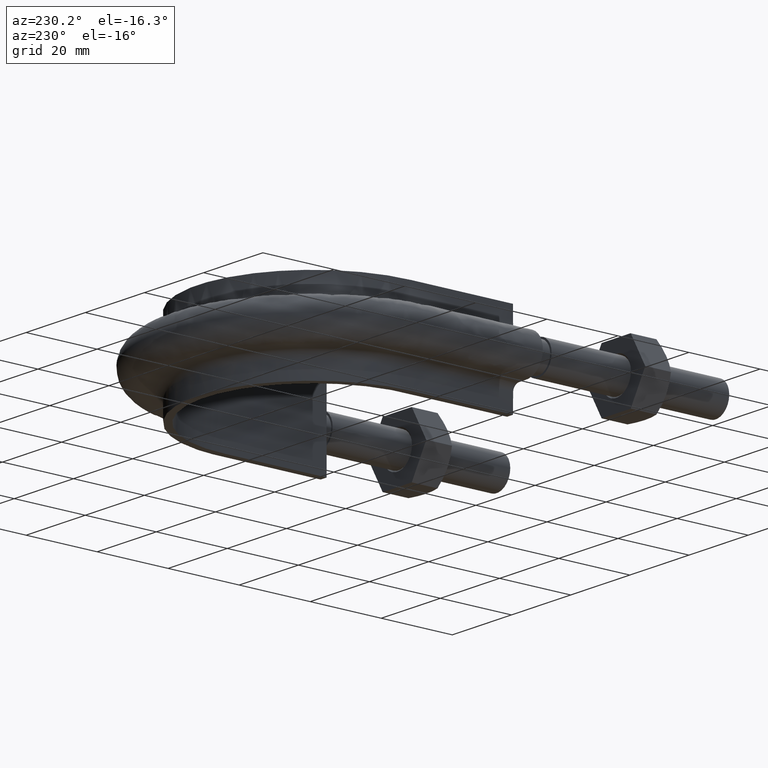
[diagram: clean part render]
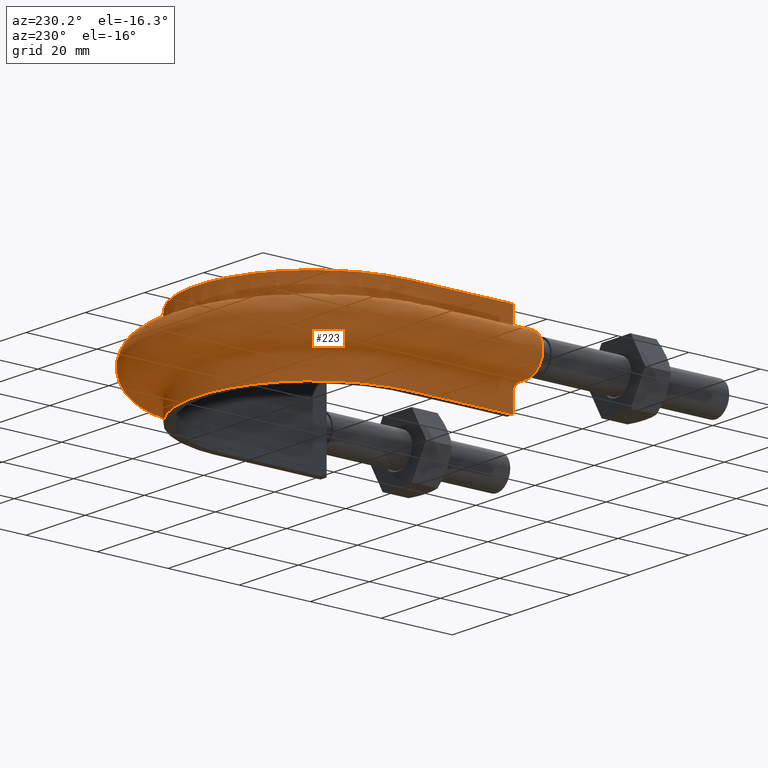
[diagram: same view with one face highlighted and labeled with its STEP entity id]
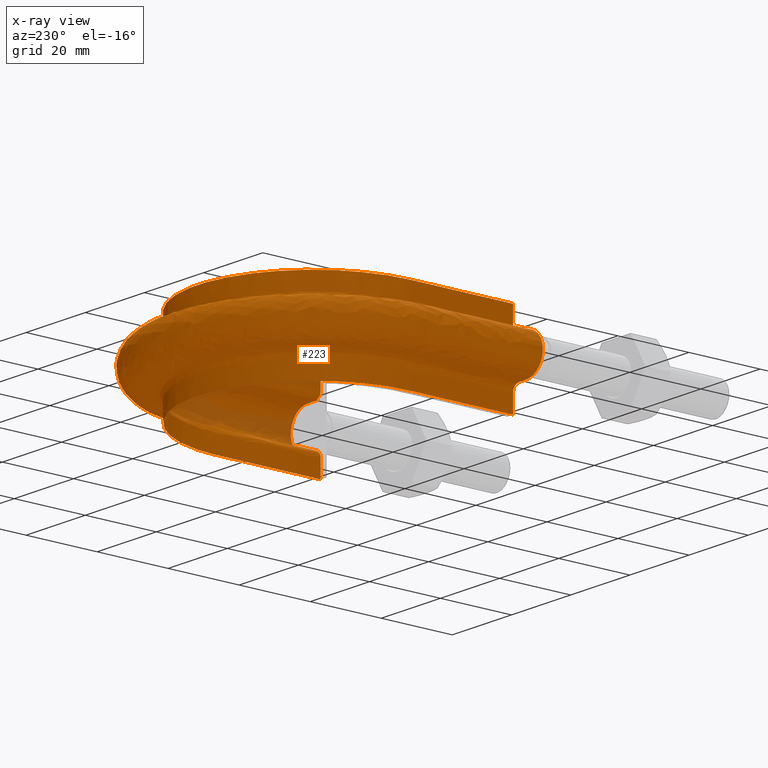
[diagram: x-ray of the same camera — body ghosted, the highlighted face saturated]
A machine part, auxiliary view. The second image highlights one B-rep face of the part: STEP entity #223.
The next image is the same camera in x-ray: the body ghosted, the highlighted face saturated — about 5% of this face is hidden behind the body in this view.
In plain terms, the highlighted face is a freeform B-spline surface patch.
Its self-contained STEP definition (entity closure, byte-faithful):
#223 = ADVANCED_FACE( '', ( #306 ), #307, .F. );
#306 = FACE_OUTER_BOUND( '', #478, .T. );
#307 = B_SPLINE_SURFACE_WITH_KNOTS( '', 3, 3, ( ( #479, #480, #481, #482, #483, #484, #485, #486, #487, #488, #489, #490, #491, #492, #493, #494, #495 ), ( #496, #497, #498, #499, #500, #501, #502, #503, #504, #505, #506, #507, #508, #509, #510, #511, #512 ), ( #513, #514, #515, #516, #517, #518, #519, #520, #521, #522, #523, #524, #525, #526, #527, #528, #529 ), ( #530, #531, #532, #533, #534, #535, #536, #537, #538, #539, #540, #541, #542, #543, #544, #545, #546 ), ( #547, #548, #549, #550, #551, #552, #553, #554, #555, #556, #557, #558, #559, #560, #561, #562, #563 ), ( #564, #565, #566, #567, #568, #569, #570, #571, #572, #573, #574, #575, #576, #577, #578, #579, #580 ), ( #581, #582, #583, #584, #585, #586, #587, #588, #589, #590, #591, #592, #593, #594, #595, #596, #597 ), ( #598, #599, #600, #601, #602, #603, #604, #605, #606, #607, #608, #609, #610, #611, #612, #613, #614 ), ( #615, #616, #617, #618, #619, #620, #621, #622, #623, #624, #625, #626, #627, #628, #629, #630, #631 ), ( #632, #633, #634, #635, #636, #637, #638, #639, #640, #641, #642, #643, #644, #645, #646, #647, #648 ), ( #649, #650, #651, #652, #653, #654, #655, #656, #657, #658, #659, #660, #661, #662, #663, #664, #665 ), ( #666, #667, #668, #669, #670, #671, #672, #673, #674, #675, #676, #677, #678, #679, #680, #681, #682 ), ( #683, #684, #685, #686, #687, #688, #689, #690, #691, #692, #693, #694, #695, #696, #697, #698, #699 ), ( #700, #701, #702, #703, #704, #705, #706, #707, #708, #709, #710, #711, #712, #713, #714, #715, #716 ), ( #717, #718, #719, #720, #721, #722, #723, #724, #725, #726, #727, #728, #729, #730, #731, #732, #733 ), ( #734, #735, #736, #737, #738, #739, #740, #741, #742, #743, #744, #745, #746, #747, #748, #749, #750 ), ( #751, #752, #753, #754, #755, #756, #757, #758, #759, #760, #761, #762, #763, #764, #765, #766, #767 ), ( #768, #769, #770, #771, #772, #773, #774, #775, #776, #777, #778, #779, #780, #781, #782, #783, #784 ), ( #785, #786, #787, #788, #789, #790, #791, #792, #793, #794, #795, #796, #797, #798, #799, #800, #801 ), ( #802, #803, #804, #805, #806, #807, #808, #809, #810, #811, #812, #813, #814, #815, #816, #817, #818 ), ( #819, #820, #821, #822, #823, #824, #825, #826, #827, #828, #829, #830, #831, #832, #833, #834, #835 ), ( #836, #837, #838, #839, #840, #841, #842, #843, #844, #845, #846, #847, #848, #849, #850, #851, #852 ), ( #853, #854, #855, #856, #857, #858, #859, #860, #861, #862, #863, #864, #865, #866, #867, #868, #869 ), ( #870, #871, #872, #873, #874, #875, #876, #877, #878, #879, #880, #881, #882, #883, #884, #885, #886 ), ( #887, #888, #889, #890, #891, #892, #893, #894, #895, #896, #897, #898, #899, #900, #901, #902, #903 ), ( #904, #905, #906, #907, #908, #909, #910, #911, #912, #913, #914, #915, #916, #917, #918, #919, #920 ), ( #921, #922, #923, #924, #925, #926, #927, #928, #929, #930, #931, #932, #933, #934, #935, #936, #937 ), ( #938, #939, #940, #941, #942, #943, #944, #945, #946, #947, #948, #949, #950, #951, #952, #953, #954 ), ( #955, #956, #957, #958, #959, #960, #961, #962, #963, #964, #965, #966, #967, #968, #969, #970, #971 ), ( #972, #973, #974, #975, #976, #977, #978, #979, #980, #981, #982, #983, #984, #985, #986, #987, #988 ), ( #989, #990, #991, #992, #993, #994, #995, #996, #997, #998, #999, #1000, #1001, #1002, #1003, #1004, #1005 ) ), .UNSPECIFIED., .F., .F., .F., ( 4, 3, 1, 1, 1, 3, 3, 1, 1, 1, 3, 3, 1, 1, 1, 3, 4 ), ( 4, 3, 1, 1, 1, 1, 1, 1, 1, 3, 4 ), ( 0.105263157894737, 0.157894736842105, 0.210526315789474, 0.263157894736842, 0.315789473684211, 0.368421052631579, 0.421052631578947, 0.473684210526316, 0.526315789473684, 0.578947368421053, 0.631578947368421, 0.684210526315789, 0.736842105263158, 0.789473684210526, 0.842105263157895, 0.894736842105263, 0.947368421052632 ), ( 0.000000000000000, 1.00000000000000, 1.50000000000000, 2.00000000000000, 3.00000000000000, 4.00000000000000, 5.00000000000000, 6.00000000000000, 6.50000000000000, 7.00000000000000, 8.00000000000000 ), .UNSPECIFIED. );
#478 = EDGE_LOOP( '', ( #1495, #1496, #1497, #1498 ) );
#479 = CARTESIAN_POINT( '', ( -32.5000000000000, 49.4000000000000, 12.5000000000000 ) );
#480 = CARTESIAN_POINT( '', ( -32.5000000000000, 60.4333333333333, 12.5000000000000 ) );
#481 = CARTESIAN_POINT( '', ( -32.5000000000000, 71.4666666666667, 12.5000000000000 ) );
#482 = CARTESIAN_POINT( '', ( -32.5000000000000, 82.5000000000000, 12.5000000000000 ) );
#483 = CARTESIAN_POINT( '', ( -32.5000000000000, 85.3255423698130, 12.5000000000000 ) );
#484 = CARTESIAN_POINT( '', ( -31.7387347919768, 91.0086177593115, 12.5000000000000 ) );
#485 = CARTESIAN_POINT( '', ( -27.3871545291852, 101.582731692400, 12.5000000000000 ) );
#486 = CARTESIAN_POINT( '', ( -17.0093196223625, 111.962325971844, 12.5000000000000 ) );
#487 = CARTESIAN_POINT( '', ( 2.98814820985346E-014, 116.518837014078, 12.5000000000000 ) );
#488 = CARTESIAN_POINT( '', ( 17.0093196223626, 111.962325971844, 12.5000000000000 ) );
#489 = CARTESIAN_POINT( '', ( 27.3871545291853, 101.582731692400, 12.5000000000000 ) );
#490 = CARTESIAN_POINT( '', ( 31.7387347919769, 91.0086177593115, 12.5000000000000 ) );
#491 = CARTESIAN_POINT( '', ( 32.5000000000000, 85.3255423698130, 12.5000000000000 ) );
#492 = CARTESIAN_POINT( '', ( 32.5000000000000, 82.5000000000000, 12.5000000000000 ) );
#493 = CARTESIAN_POINT( '', ( 32.5000000000000, 71.4666666666666, 12.5000000000000 ) );
#494 = CARTESIAN_POINT( '', ( 32.5000000000000, 60.4333333333333, 12.5000000000000 ) );
#495 = CARTESIAN_POINT( '', ( 32.5000000000000, 49.4000000000000, 12.5000000000000 ) );
#496 = CARTESIAN_POINT( '', ( -32.5000000000000, 49.4000000000000, 10.8666666666667 ) );
#497 = CARTESIAN_POINT( '', ( -32.5000000000000, 60.4333333333333, 10.8666666666667 ) );
#498 = CARTESIAN_POINT( '', ( -32.5000000000000, 71.4666666666667, 10.8666666666667 ) );
#499 = CARTESIAN_POINT( '', ( -32.5000000000000, 82.5000000000000, 10.8666666666667 ) );
#500 = CARTESIAN_POINT( '', ( -32.5000000000000, 85.3255423698130, 10.8666666666667 ) );
#501 = CARTESIAN_POINT( '', ( -31.7387347919768, 91.0086177593115, 10.8666666666667 ) );
#502 = CARTESIAN_POINT( '', ( -27.3871545291852, 101.582731692400, 10.8666666666667 ) );
#503 = CARTESIAN_POINT( '', ( -17.0093196223625, 111.962325971844, 10.8666666666667 ) );
#504 = CARTESIAN_POINT( '', ( 2.98814820985346E-014, 116.518837014078, 10.8666666666667 ) );
#505 = CARTESIAN_POINT( '', ( 17.0093196223626, 111.962325971844, 10.8666666666667 ) );
#506 = CARTESIAN_POINT( '', ( 27.3871545291853, 101.582731692400, 10.8666666666667 ) );
#507 = CARTESIAN_POINT( '', ( 31.7387347919769, 91.0086177593115, 10.8666666666667 ) );
#508 = CARTESIAN_POINT( '', ( 32.5000000000000, 85.3255423698130, 10.8666666666667 ) );
#509 = CARTESIAN_POINT( '', ( 32.5000000000000, 82.5000000000000, 10.8666666666667 ) );
#510 = CARTESIAN_POINT( '', ( 32.5000000000000, 71.4666666666666, 10.8666666666667 ) );
#511 = CARTESIAN_POINT( '', ( 32.5000000000000, 60.4333333333333, 10.8666666666667 ) );
#512 = CARTESIAN_POINT( '', ( 32.5000000000000, 49.4000000000000, 10.8666666666667 ) );
#513 = CARTESIAN_POINT( '', ( -32.5000000000000, 49.4000000000000, 9.23333333333332 ) );
#514 = CARTESIAN_POINT( '', ( -32.5000000000000, 60.4333333333333, 9.23333333333332 ) );
#515 = CARTESIAN_POINT( '', ( -32.5000000000000, 71.4666666666667, 9.23333333333332 ) );
#516 = CARTESIAN_POINT( '', ( -32.5000000000000, 82.5000000000000, 9.23333333333332 ) );
#517 = CARTESIAN_POINT( '', ( -32.5000000000000, 85.3255423698130, 9.23333333333332 ) );
#518 = CARTESIAN_POINT( '', ( -31.7387347919768, 91.0086177593115, 9.23333333333332 ) );
#519 = CARTESIAN_POINT( '', ( -27.3871545291852, 101.582731692400, 9.23333333333333 ) );
#520 = CARTESIAN_POINT( '', ( -17.0093196223625, 111.962325971844, 9.23333333333332 ) );
#521 = CARTESIAN_POINT( '', ( 2.38099499326158E-014, 116.518837014078, 9.23333333333332 ) );
#522 = CARTESIAN_POINT( '', ( 17.0093196223626, 111.962325971844, 9.23333333333332 ) );
#523 = CARTESIAN_POINT( '', ( 27.3871545291853, 101.582731692400, 9.23333333333333 ) );
#524 = CARTESIAN_POINT( '', ( 31.7387347919769, 91.0086177593115, 9.23333333333332 ) );
#525 = CARTESIAN_POINT( '', ( 32.5000000000000, 85.3255423698130, 9.23333333333332 ) );
#526 = CARTESIAN_POINT( '', ( 32.5000000000000, 82.5000000000000, 9.23333333333332 ) );
#527 = CARTESIAN_POINT( '', ( 32.5000000000000, 71.4666666666667, 9.23333333333332 ) );
#528 = CARTESIAN_POINT( '', ( 32.5000000000000, 60.4333333333333, 9.23333333333332 ) );
#529 = CARTESIAN_POINT( '', ( 32.5000000000000, 49.4000000000000, 9.23333333333332 ) );
#530 = CARTESIAN_POINT( '', ( -32.5000000000000, 49.4000000000000, 7.59999999999998 ) );
#531 = CARTESIAN_POINT( '', ( -32.5000000000000, 60.4333333333333, 7.59999999999998 ) );
#532 = CARTESIAN_POINT( '', ( -32.5000000000000, 71.4666666666667, 7.59999999999998 ) );
#533 = CARTESIAN_POINT( '', ( -32.5000000000000, 82.5000000000000, 7.59999999999998 ) );
#534 = CARTESIAN_POINT( '', ( -32.5000000000000, 85.3255423698130, 7.59999999999998 ) );
#535 = CARTESIAN_POINT( '', ( -31.7387347919768, 91.0086177593115, 7.59999999999998 ) );
#536 = CARTESIAN_POINT( '', ( -27.3871545291852, 101.582731692400, 7.59999999999999 ) );
#537 = CARTESIAN_POINT( '', ( -17.0093196223625, 111.962325971844, 7.59999999999998 ) );
#538 = CARTESIAN_POINT( '', ( 2.29425881946274E-014, 116.518837014078, 7.59999999999999 ) );
#539 = CARTESIAN_POINT( '', ( 17.0093196223626, 111.962325971844, 7.59999999999998 ) );
#540 = CARTESIAN_POINT( '', ( 27.3871545291853, 101.582731692400, 7.59999999999999 ) );
#541 = CARTESIAN_POINT( '', ( 31.7387347919769, 91.0086177593115, 7.59999999999998 ) );
#542 = CARTESIAN_POINT( '', ( 32.5000000000000, 85.3255423698130, 7.59999999999998 ) );
#543 = CARTESIAN_POINT( '', ( 32.5000000000000, 82.5000000000000, 7.59999999999998 ) );
#544 = CARTESIAN_POINT( '', ( 32.5000000000000, 71.4666666666667, 7.59999999999998 ) );
#545 = CARTESIAN_POINT( '', ( 32.5000000000000, 60.4333333333333, 7.59999999999998 ) );
#546 = CARTESIAN_POINT( '', ( 32.5000000000000, 49.4000000000000, 7.59999999999998 ) );
#547 = CARTESIAN_POINT( '', ( -32.5000000000000, 49.4000000000000, 7.33823584172332 ) );
#548 = CARTESIAN_POINT( '', ( -32.5000000000000, 60.4333333333333, 7.33823584172332 ) );
#549 = CARTESIAN_POINT( '', ( -32.5000000000000, 71.4666666666667, 7.33823584172332 ) );
#550 = CARTESIAN_POINT( '', ( -32.5000000000000, 82.5000000000000, 7.33823584172332 ) );
#551 = CARTESIAN_POINT( '', ( -32.5000000000000, 85.3255423698130, 7.33823584172332 ) );
#552 = CARTESIAN_POINT( '', ( -31.7387347919768, 91.0086177593115, 7.33823584172331 ) );
#553 = CARTESIAN_POINT( '', ( -27.3871545291852, 101.582731692400, 7.33823584172332 ) );
#554 = CARTESIAN_POINT( '', ( -17.0093196223625, 111.962325971844, 7.33823584172331 ) );
#555 = CARTESIAN_POINT( '', ( 2.20752264566390E-014, 116.518837014078, 7.33823584172332 ) );
#556 = CARTESIAN_POINT( '', ( 17.0093196223626, 111.962325971844, 7.33823584172331 ) );
#557 = CARTESIAN_POINT( '', ( 27.3871545291853, 101.582731692400, 7.33823584172332 ) );
#558 = CARTESIAN_POINT( '', ( 31.7387347919769, 91.0086177593115, 7.33823584172331 ) );
#559 = CARTESIAN_POINT( '', ( 32.5000000000000, 85.3255423698130, 7.33823584172332 ) );
#560 = CARTESIAN_POINT( '', ( 32.5000000000000, 82.5000000000000, 7.33823584172332 ) );
#561 = CARTESIAN_POINT( '', ( 32.5000000000000, 71.4666666666667, 7.33823584172332 ) );
#562 = CARTESIAN_POINT( '', ( 32.5000000000000, 60.4333333333333, 7.33823584172332 ) );
#563 = CARTESIAN_POINT( '', ( 32.5000000000000, 49.4000000000000, 7.33823584172332 ) );
#564 = CARTESIAN_POINT( '', ( -32.6041362568359, 49.4000000000000, 6.81470752516999 ) );
#565 = CARTESIAN_POINT( '', ( -32.6041362568359, 60.4333333333333, 6.81470752516999 ) );
#566 = CARTESIAN_POINT( '', ( -32.6041362568359, 71.4666666666667, 6.81470752516999 ) );
#567 = CARTESIAN_POINT( '', ( -32.6041362568359, 82.5000000000000, 6.81470752516999 ) );
#568 = CARTESIAN_POINT( '', ( -32.6041362568359, 85.3348434451203, 6.81470752516999 ) );
#569 = CARTESIAN_POINT( '', ( -31.8404751803345, 91.0357806771154, 6.81470752516999 ) );
#570 = CARTESIAN_POINT( '', ( -27.4748832731721, 101.643934525204, 6.81470752517000 ) );
#571 = CARTESIAN_POINT( '', ( -17.0638286428161, 112.056707813853, 6.81470752516999 ) );
#572 = CARTESIAN_POINT( '', ( 2.20885763147362E-014, 116.627850478327, 6.81470752516999 ) );
#573 = CARTESIAN_POINT( '', ( 17.0638286428161, 112.056707813853, 6.81470752516999 ) );
#574 = CARTESIAN_POINT( '', ( 27.4748832731721, 101.643934525204, 6.81470752517000 ) );
#575 = CARTESIAN_POINT( '', ( 31.8404751803346, 91.0357806771154, 6.81470752516999 ) );
#576 = CARTESIAN_POINT( '', ( 32.6041362568360, 85.3348434451203, 6.81470752516999 ) );
#577 = CARTESIAN_POINT( '', ( 32.6041362568359, 82.5000000000000, 6.81470752516999 ) );
#578 = CARTESIAN_POINT( '', ( 32.6041362568359, 71.4666666666667, 6.81470752516999 ) );
#579 = CARTESIAN_POINT( '', ( 32.6041362568359, 60.4333333333333, 6.81470752516999 ) );
#580 = CARTESIAN_POINT( '', ( 32.6041362568359, 49.4000000000000, 6.81470752516999 ) );
#581 = CARTESIAN_POINT( '', ( -33.0489687109389, 49.4000000000000, 6.14896871093886 ) );
#582 = CARTESIAN_POINT( '', ( -33.0489687109389, 60.4333333333333, 6.14896871093886 ) );
#583 = CARTESIAN_POINT( '', ( -33.0489687109389, 71.4666666666667, 6.14896871093886 ) );
#584 = CARTESIAN_POINT( '', ( -33.0489687109389, 82.5000000000000, 6.14896871093886 ) );
#585 = CARTESIAN_POINT( '', ( -33.0489687109389, 85.3745742774016, 6.14896871093886 ) );
#586 = CARTESIAN_POINT( '', ( -32.2750733501712, 91.1518108452281, 6.14896871093886 ) );
#587 = CARTESIAN_POINT( '', ( -27.8496287620996, 101.905370908091, 6.14896871093886 ) );
#588 = CARTESIAN_POINT( '', ( -17.2966714784992, 112.459872933086, 6.14896871093886 ) );
#589 = CARTESIAN_POINT( '', ( 2.21456020838557E-014, 117.093516599865, 6.14896871093886 ) );
#590 = CARTESIAN_POINT( '', ( 17.2966714784993, 112.459872933086, 6.14896871093885 ) );
#591 = CARTESIAN_POINT( '', ( 27.8496287620997, 101.905370908091, 6.14896871093886 ) );
#592 = CARTESIAN_POINT( '', ( 32.2750733501712, 91.1518108452281, 6.14896871093885 ) );
#593 = CARTESIAN_POINT( '', ( 33.0489687109389, 85.3745742774016, 6.14896871093886 ) );
#594 = CARTESIAN_POINT( '', ( 33.0489687109389, 82.5000000000000, 6.14896871093886 ) );
#595 = CARTESIAN_POINT( '', ( 33.0489687109389, 71.4666666666667, 6.14896871093886 ) );
#596 = CARTESIAN_POINT( '', ( 33.0489687109389, 60.4333333333333, 6.14896871093886 ) );
#597 = CARTESIAN_POINT( '', ( 33.0489687109389, 49.4000000000000, 6.14896871093886 ) );
#598 = CARTESIAN_POINT( '', ( -33.7147075251700, 49.4000000000000, 5.70413625683589 ) );
#599 = CARTESIAN_POINT( '', ( -33.7147075251700, 60.4333333333333, 5.70413625683589 ) );
#600 = CARTESIAN_POINT( '', ( -33.7147075251700, 71.4666666666667, 5.70413625683589 ) );
#601 = CARTESIAN_POINT( '', ( -33.7147075251700, 82.5000000000000, 5.70413625683589 ) );
#602 = CARTESIAN_POINT( '', ( -33.7147075251700, 85.4340356699494, 5.70413625683589 ) );
#603 = CARTESIAN_POINT( '', ( -32.9254954755926, 91.3254622634686, 5.70413625683589 ) );
#604 = CARTESIAN_POINT( '', ( -28.4104750203614, 102.296638105289, 5.70413625683589 ) );
#605 = CARTESIAN_POINT( '', ( -17.6451454081780, 113.063252173835, 5.70413625683589 ) );
#606 = CARTESIAN_POINT( '', ( 2.13635854405521E-014, 117.790435200837, 5.70413625683589 ) );
#607 = CARTESIAN_POINT( '', ( 17.6451454081780, 113.063252173835, 5.70413625683589 ) );
#608 = CARTESIAN_POINT( '', ( 28.4104750203615, 102.296638105289, 5.70413625683589 ) );
#609 = CARTESIAN_POINT( '', ( 32.9254954755927, 91.3254622634686, 5.70413625683589 ) );
#610 = CARTESIAN_POINT( '', ( 33.7147075251700, 85.4340356699494, 5.70413625683589 ) );
#611 = CARTESIAN_POINT( '', ( 33.7147075251700, 82.5000000000000, 5.70413625683589 ) );
#612 = CARTESIAN_POINT( '', ( 33.7147075251700, 71.4666666666667, 5.70413625683589 ) );
#613 = CARTESIAN_POINT( '', ( 33.7147075251700, 60.4333333333333, 5.70413625683589 ) );
#614 = CARTESIAN_POINT( '', ( 33.7147075251700, 49.4000000000000, 5.70413625683589 ) );
#615 = CARTESIAN_POINT( '', ( -34.2382358417233, 49.4000000000000, 5.59999999999998 ) );
#616 = CARTESIAN_POINT( '', ( -34.2382358417233, 60.4333333333333, 5.59999999999998 ) );
#617 = CARTESIAN_POINT( '', ( -34.2382358417233, 71.4666666666667, 5.59999999999998 ) );
#618 = CARTESIAN_POINT( '', ( -34.2382358417233, 82.5000000000000, 5.59999999999998 ) );
#619 = CARTESIAN_POINT( '', ( -34.2382358417233, 85.4807953331612, 5.59999999999998 ) );
#620 = CARTESIAN_POINT( '', ( -33.4369789479273, 91.4620194728654, 5.59999999999998 ) );
#621 = CARTESIAN_POINT( '', ( -28.8515171996013, 102.604325523677, 5.59999999999999 ) );
#622 = CARTESIAN_POINT( '', ( -17.9191807593812, 113.537741735507, 5.59999999999998 ) );
#623 = CARTESIAN_POINT( '', ( 2.49001466613320E-014, 118.338482894831, 5.59999999999998 ) );
#624 = CARTESIAN_POINT( '', ( 17.9191807593812, 113.537741735507, 5.59999999999998 ) );
#625 = CARTESIAN_POINT( '', ( 28.8515171996013, 102.604325523677, 5.59999999999999 ) );
#626 = CARTESIAN_POINT( '', ( 33.4369789479274, 91.4620194728654, 5.59999999999998 ) );
#627 = CARTESIAN_POINT( '', ( 34.2382358417234, 85.4807953331612, 5.59999999999998 ) );
#628 = CARTESIAN_POINT( '', ( 34.2382358417234, 82.5000000000000, 5.59999999999998 ) );
#629 = CARTESIAN_POINT( '', ( 34.2382358417234, 71.4666666666667, 5.59999999999998 ) );
#630 = CARTESIAN_POINT( '', ( 34.2382358417234, 60.4333333333333, 5.59999999999998 ) );
#631 = CARTESIAN_POINT( '', ( 34.2382358417234, 49.4000000000000, 5.59999999999998 ) );
#632 = CARTESIAN_POINT( '', ( -34.5000000000000, 49.4000000000000, 5.59999999999998 ) );
#633 = CARTESIAN_POINT( '', ( -34.5000000000000, 60.4333333333333, 5.59999999999998 ) );
#634 = CARTESIAN_POINT( '', ( -34.5000000000000, 71.4666666666667, 5.59999999999998 ) );
#635 = CARTESIAN_POINT( '', ( -34.5000000000000, 82.5000000000000, 5.59999999999998 ) );
#636 = CARTESIAN_POINT( '', ( -34.5000000000000, 85.5041751647671, 5.59999999999998 ) );
#637 = CARTESIAN_POINT( '', ( -33.6927206840947, 91.5302980775637, 5.59999999999998 ) );
#638 = CARTESIAN_POINT( '', ( -29.0720382892212, 102.758169232871, 5.59999999999999 ) );
#639 = CARTESIAN_POINT( '', ( -18.0561984349828, 113.774986516344, 5.59999999999998 ) );
#640 = CARTESIAN_POINT( '', ( 2.31989803197683E-014, 118.612506741828, 5.59999999999998 ) );
#641 = CARTESIAN_POINT( '', ( 18.0561984349828, 113.774986516344, 5.59999999999998 ) );
#642 = CARTESIAN_POINT( '', ( 29.0720382892212, 102.758169232871, 5.59999999999999 ) );
#643 = CARTESIAN_POINT( '', ( 33.6927206840947, 91.5302980775638, 5.59999999999998 ) );
#644 = CARTESIAN_POINT( '', ( 34.5000000000000, 85.5041751647671, 5.59999999999998 ) );
#645 = CARTESIAN_POINT( '', ( 34.5000000000000, 82.5000000000000, 5.59999999999998 ) );
#646 = CARTESIAN_POINT( '', ( 34.5000000000000, 71.4666666666667, 5.59999999999998 ) );
#647 = CARTESIAN_POINT( '', ( 34.5000000000000, 60.4333333333333, 5.59999999999998 ) );
#648 = CARTESIAN_POINT( '', ( 34.5000000000000, 49.4000000000000, 5.59999999999998 ) );
#649 = CARTESIAN_POINT( '', ( -35.3333333333333, 49.4000000000000, 5.60000000000000 ) );
#650 = CARTESIAN_POINT( '', ( -35.3333333333333, 60.4333333333333, 5.60000000000000 ) );
#651 = CARTESIAN_POINT( '', ( -35.3333333333333, 71.4666666666667, 5.60000000000000 ) );
#652 = CARTESIAN_POINT( '', ( -35.3333333333333, 82.5000000000000, 5.60000000000000 ) );
#653 = CARTESIAN_POINT( '', ( -35.3333333333333, 85.5786054959979, 5.60000000000000 ) );
#654 = CARTESIAN_POINT( '', ( -34.5068814724771, 91.7476648768355, 5.60000000000000 ) );
#655 = CARTESIAN_POINT( '', ( -29.7740731892362, 103.247934874734, 5.60000000000000 ) );
#656 = CARTESIAN_POINT( '', ( -18.4923979402412, 114.530261743218, 5.60000000000000 ) );
#657 = CARTESIAN_POINT( '', ( 2.33058103719103E-014, 119.484869128391, 5.60000000000000 ) );
#658 = CARTESIAN_POINT( '', ( 18.4923979402412, 114.530261743218, 5.60000000000000 ) );
#659 = CARTESIAN_POINT( '', ( 29.7740731892362, 103.247934874734, 5.60000000000000 ) );
#660 = CARTESIAN_POINT( '', ( 34.5068814724771, 91.7476648768355, 5.59999999999999 ) );
#661 = CARTESIAN_POINT( '', ( 35.3333333333334, 85.5786054959979, 5.60000000000000 ) );
#662 = CARTESIAN_POINT( '', ( 35.3333333333334, 82.5000000000000, 5.60000000000000 ) );
#663 = CARTESIAN_POINT( '', ( 35.3333333333334, 71.4666666666667, 5.60000000000000 ) );
#664 = CARTESIAN_POINT( '', ( 35.3333333333334, 60.4333333333333, 5.60000000000000 ) );
#665 = CARTESIAN_POINT( '', ( 35.3333333333334, 49.4000000000000, 5.60000000000000 ) );
#666 = CARTESIAN_POINT( '', ( -36.1666666666667, 49.4000000000000, 5.60000000000000 ) );
#667 = CARTESIAN_POINT( '', ( -36.1666666666667, 60.4333333333333, 5.60000000000000 ) );
#668 = CARTESIAN_POINT( '', ( -36.1666666666667, 71.4666666666667, 5.60000000000000 ) );
#669 = CARTESIAN_POINT( '', ( -36.1666666666667, 82.5000000000000, 5.60000000000000 ) );
#670 = CARTESIAN_POINT( '', ( -36.1666666666667, 85.6530358272288, 5.60000000000000 ) );
#671 = CARTESIAN_POINT( '', ( -35.3210422608595, 91.9650316761073, 5.60000000000000 ) );
#672 = CARTESIAN_POINT( '', ( -30.4761080892512, 103.737700516597, 5.60000000000000 ) );
#673 = CARTESIAN_POINT( '', ( -18.9285974454996, 115.285536970093, 5.60000000000000 ) );
#674 = CARTESIAN_POINT( '', ( 2.34126404240523E-014, 120.357231514953, 5.60000000000000 ) );
#675 = CARTESIAN_POINT( '', ( 18.9285974454996, 115.285536970093, 5.60000000000000 ) );
#676 = CARTESIAN_POINT( '', ( 30.4761080892512, 103.737700516597, 5.60000000000000 ) );
#677 = CARTESIAN_POINT( '', ( 35.3210422608596, 91.9650316761073, 5.59999999999999 ) );
#678 = CARTESIAN_POINT( '', ( 36.1666666666667, 85.6530358272288, 5.60000000000000 ) );
#679 = CARTESIAN_POINT( '', ( 36.1666666666667, 82.5000000000000, 5.60000000000000 ) );
#680 = CARTESIAN_POINT( '', ( 36.1666666666667, 71.4666666666667, 5.60000000000000 ) );
#681 = CARTESIAN_POINT( '', ( 36.1666666666667, 60.4333333333333, 5.60000000000000 ) );
#682 = CARTESIAN_POINT( '', ( 36.1666666666667, 49.4000000000000, 5.60000000000000 ) );
#683 = CARTESIAN_POINT( '', ( -37.0000000000000, 49.4000000000000, 5.60000000000000 ) );
#684 = CARTESIAN_POINT( '', ( -37.0000000000000, 60.4333333333333, 5.60000000000000 ) );
#685 = CARTESIAN_POINT( '', ( -37.0000000000000, 71.4666666666667, 5.60000000000000 ) );
#686 = CARTESIAN_POINT( '', ( -37.0000000000000, 82.5000000000000, 5.60000000000000 ) );
#687 = CARTESIAN_POINT( '', ( -37.0000000000000, 85.7274661584597, 5.60000000000000 ) );
#688 = CARTESIAN_POINT( '', ( -36.1352030492419, 92.1823984753790, 5.60000000000000 ) );
#689 = CARTESIAN_POINT( '', ( -31.1781429892662, 104.227466158460, 5.60000000000000 ) );
#690 = CARTESIAN_POINT( '', ( -19.3647969507580, 116.040812196968, 5.60000000000000 ) );
#691 = CARTESIAN_POINT( '', ( 2.00500235242407E-014, 121.229593901516, 5.60000000000000 ) );
#692 = CARTESIAN_POINT( '', ( 19.3647969507581, 116.040812196968, 5.60000000000000 ) );
#693 = CARTESIAN_POINT( '', ( 31.1781429892662, 104.227466158460, 5.60000000000000 ) );
#694 = CARTESIAN_POINT( '', ( 36.1352030492420, 92.1823984753790, 5.59999999999999 ) );
#695 = CARTESIAN_POINT( '', ( 37.0000000000000, 85.7274661584597, 5.60000000000000 ) );
#696 = CARTESIAN_POINT( '', ( 37.0000000000000, 82.5000000000000, 5.60000000000000 ) );
#697 = CARTESIAN_POINT( '', ( 37.0000000000000, 71.4666666666667, 5.60000000000000 ) );
#698 = CARTESIAN_POINT( '', ( 37.0000000000000, 60.4333333333333, 5.60000000000000 ) );
#699 = CARTESIAN_POINT( '', ( 37.0000000000000, 49.4000000000000, 5.60000000000000 ) );
#700 = CARTESIAN_POINT( '', ( -38.4627416997969, 49.4000000000000, 5.60000000000000 ) );
#701 = CARTESIAN_POINT( '', ( -38.4627416997969, 60.4333333333333, 5.60000000000000 ) );
#702 = CARTESIAN_POINT( '', ( -38.4627416997969, 71.4666666666667, 5.60000000000000 ) );
#703 = CARTESIAN_POINT( '', ( -38.4627416997969, 82.5000000000000, 5.60000000000000 ) );
#704 = CARTESIAN_POINT( '', ( -38.4627416997969, 85.8581129775250, 5.60000000000000 ) );
#705 = CARTESIAN_POINT( '', ( -37.5642913718498, 92.5639402531145, 5.59999999999999 ) );
#706 = CARTESIAN_POINT( '', ( -32.4104178568238, 105.087146911437, 5.60000000000000 ) );
#707 = CARTESIAN_POINT( '', ( -20.1304535976848, 117.366539279976, 5.59999999999999 ) );
#708 = CARTESIAN_POINT( '', ( 2.11049029887007E-014, 122.760842909708, 5.60000000000000 ) );
#709 = CARTESIAN_POINT( '', ( 20.1304535976848, 117.366539279976, 5.59999999999999 ) );
#710 = CARTESIAN_POINT( '', ( 32.4104178568238, 105.087146911437, 5.60000000000000 ) );
#711 = CARTESIAN_POINT( '', ( 37.5642913718498, 92.5639402531144, 5.59999999999999 ) );
#712 = CARTESIAN_POINT( '', ( 38.4627416997970, 85.8581129775250, 5.60000000000000 ) );
#713 = CARTESIAN_POINT( '', ( 38.4627416997970, 82.5000000000000, 5.60000000000000 ) );
#714 = CARTESIAN_POINT( '', ( 38.4627416997970, 71.4666666666667, 5.60000000000000 ) );
#715 = CARTESIAN_POINT( '', ( 38.4627416997970, 60.4333333333333, 5.60000000000000 ) );
#716 = CARTESIAN_POINT( '', ( 38.4627416997970, 49.4000000000000, 5.60000000000000 ) );
#717 = CARTESIAN_POINT( '', ( -41.3882250993908, 49.4000000000000, 4.38822509939085 ) );
#718 = CARTESIAN_POINT( '', ( -41.3882250993908, 60.4333333333333, 4.38822509939085 ) );
#719 = CARTESIAN_POINT( '', ( -41.3882250993908, 71.4666666666667, 4.38822509939085 ) );
#720 = CARTESIAN_POINT( '', ( -41.3882250993908, 82.5000000000000, 4.38822509939085 ) );
#721 = CARTESIAN_POINT( '', ( -41.3882250993908, 86.1194066156556, 4.38822509939085 ) );
#722 = CARTESIAN_POINT( '', ( -40.4224680170654, 93.3270238085853, 4.38822509939085 ) );
#723 = CARTESIAN_POINT( '', ( -34.8749675919391, 106.806508417390, 4.38822509939085 ) );
#724 = CARTESIAN_POINT( '', ( -21.6617668915383, 120.017993445992, 4.38822509939085 ) );
#725 = CARTESIAN_POINT( '', ( 2.14799384416438E-014, 125.823340926090, 4.38822509939085 ) );
#726 = CARTESIAN_POINT( '', ( 21.6617668915383, 120.017993445992, 4.38822509939085 ) );
#727 = CARTESIAN_POINT( '', ( 34.8749675919392, 106.806508417390, 4.38822509939085 ) );
#728 = CARTESIAN_POINT( '', ( 40.4224680170655, 93.3270238085853, 4.38822509939085 ) );
#729 = CARTESIAN_POINT( '', ( 41.3882250993909, 86.1194066156556, 4.38822509939085 ) );
#730 = CARTESIAN_POINT( '', ( 41.3882250993909, 82.5000000000000, 4.38822509939085 ) );
#731 = CARTESIAN_POINT( '', ( 41.3882250993909, 71.4666666666667, 4.38822509939085 ) );
#732 = CARTESIAN_POINT( '', ( 41.3882250993909, 60.4333333333333, 4.38822509939085 ) );
#733 = CARTESIAN_POINT( '', ( 41.3882250993909, 49.4000000000000, 4.38822509939085 ) );
#734 = CARTESIAN_POINT( '', ( -43.2058874503046, 49.4000000000000, -1.07693261045861E-015 ) );
#735 = CARTESIAN_POINT( '', ( -43.2058874503046, 60.4333333333333, -1.07693261045861E-015 ) );
#736 = CARTESIAN_POINT( '', ( -43.2058874503046, 71.4666666666667, -1.07693261045861E-015 ) );
#737 = CARTESIAN_POINT( '', ( -43.2058874503046, 82.5000000000000, -1.07693261045861E-015 ) );
#738 = CARTESIAN_POINT( '', ( -43.2058874503046, 86.2817536686688, -1.07693261045861E-015 ) );
#739 = CARTESIAN_POINT( '', ( -42.1983113122250, 93.8011431454352, -1.07693261045861E-015 ) );
#740 = CARTESIAN_POINT( '', ( -36.4062424800808, 107.874782698973, -1.07693261045861E-015 ) );
#741 = CARTESIAN_POINT( '', ( -22.6132029933728, 121.665395859353, -1.07693261045861E-015 ) );
#742 = CARTESIAN_POINT( '', ( 2.34476790740902E-014, 127.726133245780, -1.07693261045861E-015 ) );
#743 = CARTESIAN_POINT( '', ( 22.6132029933728, 121.665395859353, -1.07693261045861E-015 ) );
#744 = CARTESIAN_POINT( '', ( 36.4062424800808, 107.874782698973, -1.07693261045861E-015 ) );
#745 = CARTESIAN_POINT( '', ( 42.1983113122251, 93.8011431454352, -1.07693261045861E-015 ) );
#746 = CARTESIAN_POINT( '', ( 43.2058874503046, 86.2817536686688, -1.07693261045861E-015 ) );
#747 = CARTESIAN_POINT( '', ( 43.2058874503046, 82.5000000000000, -1.07693261045861E-015 ) );
#748 = CARTESIAN_POINT( '', ( 43.2058874503046, 71.4666666666667, -1.07693261045861E-015 ) );
#749 = CARTESIAN_POINT( '', ( 43.2058874503046, 60.4333333333333, -1.07693261045861E-015 ) );
#750 = CARTESIAN_POINT( '', ( 43.2058874503046, 49.4000000000000, -1.07693261045861E-015 ) );
#751 = CARTESIAN_POINT( '', ( -41.3882250993908, 49.4000000000000, -4.38822509939086 ) );
#752 = CARTESIAN_POINT( '', ( -41.3882250993908, 60.4333333333333, -4.38822509939086 ) );
#753 = CARTESIAN_POINT( '', ( -41.3882250993908, 71.4666666666667, -4.38822509939086 ) );
#754 = CARTESIAN_POINT( '', ( -41.3882250993908, 82.5000000000000, -4.38822509939086 ) );
#755 = CARTESIAN_POINT( '', ( -41.3882250993908, 86.1194066156556, -4.38822509939086 ) );
#756 = CARTESIAN_POINT( '', ( -40.4224680170654, 93.3270238085853, -4.38822509939086 ) );
#757 = CARTESIAN_POINT( '', ( -34.8749675919391, 106.806508417390, -4.38822509939086 ) );
#758 = CARTESIAN_POINT( '', ( -21.6617668915383, 120.017993445992, -4.38822509939086 ) );
#759 = CARTESIAN_POINT( '', ( 2.14799384416438E-014, 125.823340926090, -4.38822509939086 ) );
#760 = CARTESIAN_POINT( '', ( 21.6617668915383, 120.017993445992, -4.38822509939086 ) );
#761 = CARTESIAN_POINT( '', ( 34.8749675919392, 106.806508417390, -4.38822509939086 ) );
#762 = CARTESIAN_POINT( '', ( 40.4224680170655, 93.3270238085853, -4.38822509939086 ) );
#763 = CARTESIAN_POINT( '', ( 41.3882250993909, 86.1194066156556, -4.38822509939086 ) );
#764 = CARTESIAN_POINT( '', ( 41.3882250993909, 82.5000000000000, -4.38822509939086 ) );
#765 = CARTESIAN_POINT( '', ( 41.3882250993909, 71.4666666666667, -4.38822509939086 ) );
#766 = CARTESIAN_POINT( '', ( 41.3882250993909, 60.4333333333333, -4.38822509939086 ) );
#767 = CARTESIAN_POINT( '', ( 41.3882250993909, 49.4000000000000, -4.38822509939086 ) );
#768 = CARTESIAN_POINT( '', ( -38.4627416997969, 49.4000000000000, -5.60000000000000 ) );
#769 = CARTESIAN_POINT( '', ( -38.4627416997969, 60.4333333333333, -5.60000000000000 ) );
#770 = CARTESIAN_POINT( '', ( -38.4627416997969, 71.4666666666667, -5.60000000000000 ) );
#771 = CARTESIAN_POINT( '', ( -38.4627416997969, 82.5000000000000, -5.60000000000000 ) );
#772 = CARTESIAN_POINT( '', ( -38.4627416997969, 85.8581129775250, -5.60000000000000 ) );
#773 = CARTESIAN_POINT( '', ( -37.5642913718498, 92.5639402531145, -5.60000000000000 ) );
#774 = CARTESIAN_POINT( '', ( -32.4104178568238, 105.087146911437, -5.60000000000001 ) );
#775 = CARTESIAN_POINT( '', ( -20.1304535976848, 117.366539279976, -5.60000000000000 ) );
#776 = CARTESIAN_POINT( '', ( 2.11049029887007E-014, 122.760842909708, -5.60000000000000 ) );
#777 = CARTESIAN_POINT( '', ( 20.1304535976848, 117.366539279976, -5.60000000000000 ) );
#778 = CARTESIAN_POINT( '', ( 32.4104178568238, 105.087146911437, -5.60000000000001 ) );
#779 = CARTESIAN_POINT( '', ( 37.5642913718498, 92.5639402531144, -5.60000000000000 ) );
#780 = CARTESIAN_POINT( '', ( 38.4627416997970, 85.8581129775250, -5.60000000000000 ) );
#781 = CARTESIAN_POINT( '', ( 38.4627416997970, 82.5000000000000, -5.60000000000000 ) );
#782 = CARTESIAN_POINT( '', ( 38.4627416997970, 71.4666666666667, -5.60000000000000 ) );
#783 = CARTESIAN_POINT( '', ( 38.4627416997970, 60.4333333333333, -5.60000000000000 ) );
#784 = CARTESIAN_POINT( '', ( 38.4627416997970, 49.4000000000000, -5.60000000000000 ) );
#785 = CARTESIAN_POINT( '', ( -37.0000000000000, 49.4000000000000, -5.60000000000000 ) );
#786 = CARTESIAN_POINT( '', ( -37.0000000000000, 60.4333333333333, -5.60000000000000 ) );
#787 = CARTESIAN_POINT( '', ( -37.0000000000000, 71.4666666666667, -5.60000000000000 ) );
#788 = CARTESIAN_POINT( '', ( -37.0000000000000, 82.5000000000000, -5.60000000000000 ) );
#789 = CARTESIAN_POINT( '', ( -37.0000000000000, 85.7274661584597, -5.60000000000000 ) );
#790 = CARTESIAN_POINT( '', ( -36.1352030492419, 92.1823984753790, -5.60000000000000 ) );
#791 = CARTESIAN_POINT( '', ( -31.1781429892662, 104.227466158460, -5.60000000000001 ) );
#792 = CARTESIAN_POINT( '', ( -19.3647969507580, 116.040812196968, -5.60000000000000 ) );
#793 = CARTESIAN_POINT( '', ( 2.26521087382059E-014, 121.229593901516, -5.60000000000000 ) );
#794 = CARTESIAN_POINT( '', ( 19.3647969507581, 116.040812196968, -5.60000000000000 ) );
#795 = CARTESIAN_POINT( '', ( 31.1781429892662, 104.227466158460, -5.60000000000001 ) );
#796 = CARTESIAN_POINT( '', ( 36.1352030492420, 92.1823984753790, -5.60000000000000 ) );
#797 = CARTESIAN_POINT( '', ( 37.0000000000000, 85.7274661584597, -5.60000000000000 ) );
#798 = CARTESIAN_POINT( '', ( 37.0000000000000, 82.5000000000000, -5.60000000000000 ) );
#799 = CARTESIAN_POINT( '', ( 37.0000000000000, 71.4666666666667, -5.60000000000000 ) );
#800 = CARTESIAN_POINT( '', ( 37.0000000000000, 60.4333333333333, -5.60000000000000 ) );
#801 = CARTESIAN_POINT( '', ( 37.0000000000000, 49.4000000000000, -5.60000000000000 ) );
#802 = CARTESIAN_POINT( '', ( -36.1666666666667, 49.4000000000000, -5.60000000000000 ) );
#803 = CARTESIAN_POINT( '', ( -36.1666666666667, 60.4333333333333, -5.60000000000000 ) );
#804 = CARTESIAN_POINT( '', ( -36.1666666666667, 71.4666666666667, -5.60000000000000 ) );
#805 = CARTESIAN_POINT( '', ( -36.1666666666667, 82.5000000000000, -5.60000000000000 ) );
#806 = CARTESIAN_POINT( '', ( -36.1666666666667, 85.6530358272288, -5.60000000000000 ) );
#807 = CARTESIAN_POINT( '', ( -35.3210422608595, 91.9650316761073, -5.60000000000000 ) );
#808 = CARTESIAN_POINT( '', ( -30.4761080892512, 103.737700516597, -5.60000000000001 ) );
#809 = CARTESIAN_POINT( '', ( -18.9285974454996, 115.285536970093, -5.60000000000000 ) );
#810 = CARTESIAN_POINT( '', ( 2.08105552100871E-014, 120.357231514953, -5.60000000000000 ) );
#811 = CARTESIAN_POINT( '', ( 18.9285974454997, 115.285536970093, -5.60000000000000 ) );
#812 = CARTESIAN_POINT( '', ( 30.4761080892512, 103.737700516597, -5.60000000000001 ) );
#813 = CARTESIAN_POINT( '', ( 35.3210422608596, 91.9650316761073, -5.60000000000000 ) );
#814 = CARTESIAN_POINT( '', ( 36.1666666666667, 85.6530358272288, -5.60000000000000 ) );
#815 = CARTESIAN_POINT( '', ( 36.1666666666667, 82.5000000000000, -5.60000000000000 ) );
#816 = CARTESIAN_POINT( '', ( 36.1666666666667, 71.4666666666667, -5.60000000000000 ) );
#817 = CARTESIAN_POINT( '', ( 36.1666666666667, 60.4333333333333, -5.60000000000000 ) );
#818 = CARTESIAN_POINT( '', ( 36.1666666666667, 49.4000000000000, -5.60000000000000 ) );
#819 = CARTESIAN_POINT( '', ( -35.3333333333333, 49.4000000000000, -5.60000000000000 ) );
#820 = CARTESIAN_POINT( '', ( -35.3333333333333, 60.4333333333333, -5.60000000000000 ) );
#821 = CARTESIAN_POINT( '', ( -35.3333333333333, 71.4666666666667, -5.60000000000000 ) );
#822 = CARTESIAN_POINT( '', ( -35.3333333333333, 82.5000000000000, -5.60000000000000 ) );
#823 = CARTESIAN_POINT( '', ( -35.3333333333333, 85.5786054959979, -5.60000000000000 ) );
#824 = CARTESIAN_POINT( '', ( -34.5068814724771, 91.7476648768355, -5.60000000000000 ) );
#825 = CARTESIAN_POINT( '', ( -29.7740731892362, 103.247934874734, -5.60000000000001 ) );
#826 = CARTESIAN_POINT( '', ( -18.4923979402412, 114.530261743218, -5.60000000000000 ) );
#827 = CARTESIAN_POINT( '', ( 2.24384486339219E-014, 119.484869128391, -5.60000000000000 ) );
#828 = CARTESIAN_POINT( '', ( 18.4923979402412, 114.530261743218, -5.60000000000000 ) );
#829 = CARTESIAN_POINT( '', ( 29.7740731892362, 103.247934874734, -5.60000000000001 ) );
#830 = CARTESIAN_POINT( '', ( 34.5068814724771, 91.7476648768355, -5.60000000000000 ) );
#831 = CARTESIAN_POINT( '', ( 35.3333333333334, 85.5786054959979, -5.60000000000000 ) );
#832 = CARTESIAN_POINT( '', ( 35.3333333333334, 82.5000000000000, -5.60000000000000 ) );
#833 = CARTESIAN_POINT( '', ( 35.3333333333334, 71.4666666666667, -5.60000000000000 ) );
#834 = CARTESIAN_POINT( '', ( 35.3333333333334, 60.4333333333333, -5.60000000000000 ) );
#835 = CARTESIAN_POINT( '', ( 35.3333333333334, 49.4000000000000, -5.60000000000000 ) );
#836 = CARTESIAN_POINT( '', ( -34.5000000000000, 49.4000000000000, -5.60000000000000 ) );
#837 = CARTESIAN_POINT( '', ( -34.5000000000000, 60.4333333333333, -5.60000000000000 ) );
#838 = CARTESIAN_POINT( '', ( -34.5000000000000, 71.4666666666667, -5.60000000000000 ) );
#839 = CARTESIAN_POINT( '', ( -34.5000000000000, 82.5000000000000, -5.60000000000000 ) );
#840 = CARTESIAN_POINT( '', ( -34.5000000000000, 85.5041751647671, -5.60000000000000 ) );
#841 = CARTESIAN_POINT( '', ( -33.6927206840947, 91.5302980775637, -5.60000000000000 ) );
#842 = CARTESIAN_POINT( '', ( -29.0720382892212, 102.758169232871, -5.60000000000001 ) );
#843 = CARTESIAN_POINT( '', ( -18.0561984349828, 113.774986516344, -5.60000000000000 ) );
#844 = CARTESIAN_POINT( '', ( 2.23316185817799E-014, 118.612506741828, -5.60000000000000 ) );
#845 = CARTESIAN_POINT( '', ( 18.0561984349828, 113.774986516344, -5.60000000000000 ) );
#846 = CARTESIAN_POINT( '', ( 29.0720382892212, 102.758169232871, -5.60000000000001 ) );
#847 = CARTESIAN_POINT( '', ( 33.6927206840947, 91.5302980775637, -5.60000000000000 ) );
#848 = CARTESIAN_POINT( '', ( 34.5000000000000, 85.5041751647671, -5.60000000000000 ) );
#849 = CARTESIAN_POINT( '', ( 34.5000000000000, 82.5000000000000, -5.60000000000000 ) );
#850 = CARTESIAN_POINT( '', ( 34.5000000000000, 71.4666666666667, -5.60000000000000 ) );
#851 = CARTESIAN_POINT( '', ( 34.5000000000000, 60.4333333333333, -5.60000000000000 ) );
#852 = CARTESIAN_POINT( '', ( 34.5000000000000, 49.4000000000000, -5.60000000000000 ) );
#853 = CARTESIAN_POINT( '', ( -34.2382358417234, 49.4000000000000, -5.60000000000000 ) );
#854 = CARTESIAN_POINT( '', ( -34.2382358417234, 60.4333333333333, -5.60000000000000 ) );
#855 = CARTESIAN_POINT( '', ( -34.2382358417234, 71.4666666666667, -5.60000000000000 ) );
#856 = CARTESIAN_POINT( '', ( -34.2382358417234, 82.5000000000000, -5.60000000000000 ) );
#857 = CARTESIAN_POINT( '', ( -34.2382358417233, 85.4807953331612, -5.60000000000000 ) );
#858 = CARTESIAN_POINT( '', ( -33.4369789479273, 91.4620194728654, -5.60000000000000 ) );
#859 = CARTESIAN_POINT( '', ( -28.8515171996013, 102.604325523677, -5.60000000000001 ) );
#860 = CARTESIAN_POINT( '', ( -17.9191807593812, 113.537741735507, -5.60000000000000 ) );
#861 = CARTESIAN_POINT( '', ( 2.31654231853551E-014, 118.338482894831, -5.60000000000000 ) );
#862 = CARTESIAN_POINT( '', ( 17.9191807593812, 113.537741735507, -5.60000000000000 ) );
#863 = CARTESIAN_POINT( '', ( 28.8515171996013, 102.604325523677, -5.60000000000001 ) );
#864 = CARTESIAN_POINT( '', ( 33.4369789479274, 91.4620194728654, -5.60000000000000 ) );
#865 = CARTESIAN_POINT( '', ( 34.2382358417234, 85.4807953331612, -5.60000000000000 ) );
#866 = CARTESIAN_POINT( '', ( 34.2382358417234, 82.5000000000000, -5.60000000000000 ) );
#867 = CARTESIAN_POINT( '', ( 34.2382358417234, 71.4666666666667, -5.60000000000000 ) );
#868 = CARTESIAN_POINT( '', ( 34.2382358417234, 60.4333333333333, -5.60000000000000 ) );
#869 = CARTESIAN_POINT( '', ( 34.2382358417234, 49.4000000000000, -5.60000000000000 ) );
#870 = CARTESIAN_POINT( '', ( -33.7147075251700, 49.4000000000000, -5.70413625683591 ) );
#871 = CARTESIAN_POINT( '', ( -33.7147075251700, 60.4333333333333, -5.70413625683591 ) );
#872 = CARTESIAN_POINT( '', ( -33.7147075251700, 71.4666666666667, -5.70413625683591 ) );
#873 = CARTESIAN_POINT( '', ( -33.7147075251700, 82.5000000000000, -5.70413625683591 ) );
#874 = CARTESIAN_POINT( '', ( -33.7147075251700, 85.4340356699494, -5.70413625683591 ) );
#875 = CARTESIAN_POINT( '', ( -32.9254954755926, 91.3254622634686, -5.70413625683591 ) );
#876 = CARTESIAN_POINT( '', ( -28.4104750203614, 102.296638105289, -5.70413625683592 ) );
#877 = CARTESIAN_POINT( '', ( -17.6451454081780, 113.063252173835, -5.70413625683591 ) );
#878 = CARTESIAN_POINT( '', ( 2.13635854405521E-014, 117.790435200837, -5.70413625683591 ) );
#879 = CARTESIAN_POINT( '', ( 17.6451454081780, 113.063252173835, -5.70413625683591 ) );
#880 = CARTESIAN_POINT( '', ( 28.4104750203615, 102.296638105289, -5.70413625683592 ) );
#881 = CARTESIAN_POINT( '', ( 32.9254954755927, 91.3254622634686, -5.70413625683591 ) );
#882 = CARTESIAN_POINT( '', ( 33.7147075251701, 85.4340356699494, -5.70413625683591 ) );
#883 = CARTESIAN_POINT( '', ( 33.7147075251700, 82.5000000000000, -5.70413625683591 ) );
#884 = CARTESIAN_POINT( '', ( 33.7147075251700, 71.4666666666667, -5.70413625683591 ) );
#885 = CARTESIAN_POINT( '', ( 33.7147075251700, 60.4333333333333, -5.70413625683591 ) );
#886 = CARTESIAN_POINT( '', ( 33.7147075251700, 49.4000000000000, -5.70413625683591 ) );
#887 = CARTESIAN_POINT( '', ( -33.0489687109389, 49.4000000000000, -6.14896871093888 ) );
#888 = CARTESIAN_POINT( '', ( -33.0489687109389, 60.4333333333333, -6.14896871093888 ) );
#889 = CARTESIAN_POINT( '', ( -33.0489687109389, 71.4666666666667, -6.14896871093888 ) );
#890 = CARTESIAN_POINT( '', ( -33.0489687109389, 82.5000000000000, -6.14896871093888 ) );
#891 = CARTESIAN_POINT( '', ( -33.0489687109389, 85.3745742774016, -6.14896871093888 ) );
#892 = CARTESIAN_POINT( '', ( -32.2750733501712, 91.1518108452281, -6.14896871093888 ) );
#893 = CARTESIAN_POINT( '', ( -27.8496287620996, 101.905370908091, -6.14896871093888 ) );
#894 = CARTESIAN_POINT( '', ( -17.2966714784992, 112.459872933086, -6.14896871093888 ) );
#895 = CARTESIAN_POINT( '', ( 1.86761551319021E-014, 117.093516599865, -6.14896871093888 ) );
#896 = CARTESIAN_POINT( '', ( 17.2966714784993, 112.459872933086, -6.14896871093888 ) );
#897 = CARTESIAN_POINT( '', ( 27.8496287620997, 101.905370908091, -6.14896871093888 ) );
#898 = CARTESIAN_POINT( '', ( 32.2750733501712, 91.1518108452281, -6.14896871093887 ) );
#899 = CARTESIAN_POINT( '', ( 33.0489687109389, 85.3745742774016, -6.14896871093888 ) );
#900 = CARTESIAN_POINT( '', ( 33.0489687109389, 82.5000000000000, -6.14896871093888 ) );
#901 = CARTESIAN_POINT( '', ( 33.0489687109389, 71.4666666666667, -6.14896871093888 ) );
#902 = CARTESIAN_POINT( '', ( 33.0489687109389, 60.4333333333333, -6.14896871093888 ) );
#903 = CARTESIAN_POINT( '', ( 33.0489687109389, 49.4000000000000, -6.14896871093888 ) );
#904 = CARTESIAN_POINT( '', ( -32.6041362568359, 49.4000000000000, -6.81470752517001 ) );
#905 = CARTESIAN_POINT( '', ( -32.6041362568359, 60.4333333333333, -6.81470752517001 ) );
#906 = CARTESIAN_POINT( '', ( -32.6041362568359, 71.4666666666667, -6.81470752517001 ) );
#907 = CARTESIAN_POINT( '', ( -32.6041362568359, 82.5000000000000, -6.81470752517001 ) );
#908 = CARTESIAN_POINT( '', ( -32.6041362568359, 85.3348434451203, -6.81470752517001 ) );
#909 = CARTESIAN_POINT( '', ( -31.8404751803345, 91.0357806771154, -6.81470752517001 ) );
#910 = CARTESIAN_POINT( '', ( -27.4748832731721, 101.643934525204, -6.81470752517002 ) );
#911 = CARTESIAN_POINT( '', ( -17.0638286428161, 112.056707813853, -6.81470752517001 ) );
#912 = CARTESIAN_POINT( '', ( 2.20885763147362E-014, 116.627850478327, -6.81470752517001 ) );
#913 = CARTESIAN_POINT( '', ( 17.0638286428161, 112.056707813853, -6.81470752517001 ) );
#914 = CARTESIAN_POINT( '', ( 27.4748832731721, 101.643934525204, -6.81470752517002 ) );
#915 = CARTESIAN_POINT( '', ( 31.8404751803346, 91.0357806771154, -6.81470752517001 ) );
#916 = CARTESIAN_POINT( '', ( 32.6041362568360, 85.3348434451203, -6.81470752517001 ) );
#917 = CARTESIAN_POINT( '', ( 32.6041362568360, 82.5000000000000, -6.81470752517001 ) );
#918 = CARTESIAN_POINT( '', ( 32.6041362568360, 71.4666666666667, -6.81470752517001 ) );
#919 = CARTESIAN_POINT( '', ( 32.6041362568359, 60.4333333333333, -6.81470752517001 ) );
#920 = CARTESIAN_POINT( '', ( 32.6041362568359, 49.4000000000000, -6.81470752517001 ) );
#921 = CARTESIAN_POINT( '', ( -32.5000000000000, 49.4000000000000, -7.33823584172334 ) );
#922 = CARTESIAN_POINT( '', ( -32.5000000000000, 60.4333333333333, -7.33823584172334 ) );
#923 = CARTESIAN_POINT( '', ( -32.5000000000000, 71.4666666666667, -7.33823584172334 ) );
#924 = CARTESIAN_POINT( '', ( -32.5000000000000, 82.5000000000000, -7.33823584172334 ) );
#925 = CARTESIAN_POINT( '', ( -32.5000000000000, 85.3255423698130, -7.33823584172334 ) );
#926 = CARTESIAN_POINT( '', ( -31.7387347919768, 91.0086177593115, -7.33823584172334 ) );
#927 = CARTESIAN_POINT( '', ( -27.3871545291852, 101.582731692400, -7.33823584172335 ) );
#928 = CARTESIAN_POINT( '', ( -17.0093196223625, 111.962325971844, -7.33823584172334 ) );
#929 = CARTESIAN_POINT( '', ( 2.03405029806622E-014, 116.518837014078, -7.33823584172334 ) );
#930 = CARTESIAN_POINT( '', ( 17.0093196223626, 111.962325971844, -7.33823584172333 ) );
#931 = CARTESIAN_POINT( '', ( 27.3871545291853, 101.582731692400, -7.33823584172335 ) );
#932 = CARTESIAN_POINT( '', ( 31.7387347919769, 91.0086177593115, -7.33823584172333 ) );
#933 = CARTESIAN_POINT( '', ( 32.5000000000000, 85.3255423698130, -7.33823584172334 ) );
#934 = CARTESIAN_POINT( '', ( 32.5000000000000, 82.5000000000000, -7.33823584172334 ) );
#935 = CARTESIAN_POINT( '', ( 32.5000000000000, 71.4666666666667, -7.33823584172334 ) );
#936 = CARTESIAN_POINT( '', ( 32.5000000000000, 60.4333333333333, -7.33823584172334 ) );
#937 = CARTESIAN_POINT( '', ( 32.5000000000000, 49.4000000000000, -7.33823584172334 ) );
#938 = CARTESIAN_POINT( '', ( -32.5000000000000, 49.4000000000000, -7.60000000000000 ) );
#939 = CARTESIAN_POINT( '', ( -32.5000000000000, 60.4333333333333, -7.60000000000000 ) );
#940 = CARTESIAN_POINT( '', ( -32.5000000000000, 71.4666666666667, -7.60000000000000 ) );
#941 = CARTESIAN_POINT( '', ( -32.5000000000000, 82.5000000000000, -7.60000000000000 ) );
#942 = CARTESIAN_POINT( '', ( -32.5000000000000, 85.3255423698130, -7.60000000000000 ) );
#943 = CARTESIAN_POINT( '', ( -31.7387347919768, 91.0086177593115, -7.60000000000000 ) );
#944 = CARTESIAN_POINT( '', ( -27.3871545291852, 101.582731692400, -7.60000000000001 ) );
#945 = CARTESIAN_POINT( '', ( -17.0093196223625, 111.962325971844, -7.60000000000000 ) );
#946 = CARTESIAN_POINT( '', ( 2.03405029806622E-014, 116.518837014078, -7.60000000000000 ) );
#947 = CARTESIAN_POINT( '', ( 17.0093196223626, 111.962325971844, -7.60000000000000 ) );
#948 = CARTESIAN_POINT( '', ( 27.3871545291853, 101.582731692400, -7.60000000000001 ) );
#949 = CARTESIAN_POINT( '', ( 31.7387347919769, 91.0086177593115, -7.60000000000000 ) );
#950 = CARTESIAN_POINT( '', ( 32.5000000000000, 85.3255423698130, -7.60000000000000 ) );
#951 = CARTESIAN_POINT( '', ( 32.5000000000000, 82.5000000000000, -7.60000000000000 ) );
#952 = CARTESIAN_POINT( '', ( 32.5000000000000, 71.4666666666667, -7.60000000000000 ) );
#953 = CARTESIAN_POINT( '', ( 32.5000000000000, 60.4333333333333, -7.60000000000000 ) );
#954 = CARTESIAN_POINT( '', ( 32.5000000000000, 49.4000000000000, -7.60000000000000 ) );
#955 = CARTESIAN_POINT( '', ( -32.5000000000000, 49.4000000000000, -9.23333333333333 ) );
#956 = CARTESIAN_POINT( '', ( -32.5000000000000, 60.4333333333333, -9.23333333333333 ) );
#957 = CARTESIAN_POINT( '', ( -32.5000000000000, 71.4666666666667, -9.23333333333333 ) );
#958 = CARTESIAN_POINT( '', ( -32.5000000000000, 82.5000000000000, -9.23333333333333 ) );
#959 = CARTESIAN_POINT( '', ( -32.5000000000000, 85.3255423698130, -9.23333333333333 ) );
#960 = CARTESIAN_POINT( '', ( -31.7387347919768, 91.0086177593115, -9.23333333333333 ) );
#961 = CARTESIAN_POINT( '', ( -27.3871545291852, 101.582731692400, -9.23333333333334 ) );
#962 = CARTESIAN_POINT( '', ( -17.0093196223626, 111.962325971844, -9.23333333333333 ) );
#963 = CARTESIAN_POINT( '', ( 2.12078647186506E-014, 116.518837014078, -9.23333333333333 ) );
#964 = CARTESIAN_POINT( '', ( 17.0093196223626, 111.962325971844, -9.23333333333332 ) );
#965 = CARTESIAN_POINT( '', ( 27.3871545291853, 101.582731692400, -9.23333333333334 ) );
#966 = CARTESIAN_POINT( '', ( 31.7387347919769, 91.0086177593115, -9.23333333333333 ) );
#967 = CARTESIAN_POINT( '', ( 32.5000000000000, 85.3255423698130, -9.23333333333333 ) );
#968 = CARTESIAN_POINT( '', ( 32.5000000000000, 82.5000000000000, -9.23333333333333 ) );
#969 = CARTESIAN_POINT( '', ( 32.5000000000000, 71.4666666666667, -9.23333333333333 ) );
#970 = CARTESIAN_POINT( '', ( 32.5000000000000, 60.4333333333333, -9.23333333333333 ) );
#971 = CARTESIAN_POINT( '', ( 32.5000000000000, 49.4000000000000, -9.23333333333333 ) );
#972 = CARTESIAN_POINT( '', ( -32.5000000000000, 49.4000000000000, -10.8666666666667 ) );
#973 = CARTESIAN_POINT( '', ( -32.5000000000000, 60.4333333333333, -10.8666666666667 ) );
#974 = CARTESIAN_POINT( '', ( -32.5000000000000, 71.4666666666667, -10.8666666666667 ) );
#975 = CARTESIAN_POINT( '', ( -32.5000000000000, 82.5000000000000, -10.8666666666667 ) );
#976 = CARTESIAN_POINT( '', ( -32.5000000000000, 85.3255423698130, -10.8666666666667 ) );
#977 = CARTESIAN_POINT( '', ( -31.7387347919768, 91.0086177593115, -10.8666666666667 ) );
#978 = CARTESIAN_POINT( '', ( -27.3871545291852, 101.582731692400, -10.8666666666667 ) );
#979 = CARTESIAN_POINT( '', ( -17.0093196223626, 111.962325971844, -10.8666666666667 ) );
#980 = CARTESIAN_POINT( '', ( 2.12078647186506E-014, 116.518837014078, -10.8666666666667 ) );
#981 = CARTESIAN_POINT( '', ( 17.0093196223626, 111.962325971844, -10.8666666666667 ) );
#982 = CARTESIAN_POINT( '', ( 27.3871545291853, 101.582731692400, -10.8666666666667 ) );
#983 = CARTESIAN_POINT( '', ( 31.7387347919769, 91.0086177593115, -10.8666666666667 ) );
#984 = CARTESIAN_POINT( '', ( 32.5000000000000, 85.3255423698130, -10.8666666666667 ) );
#985 = CARTESIAN_POINT( '', ( 32.5000000000000, 82.5000000000000, -10.8666666666667 ) );
#986 = CARTESIAN_POINT( '', ( 32.5000000000000, 71.4666666666667, -10.8666666666667 ) );
#987 = CARTESIAN_POINT( '', ( 32.5000000000000, 60.4333333333333, -10.8666666666667 ) );
#988 = CARTESIAN_POINT( '', ( 32.5000000000000, 49.4000000000000, -10.8666666666667 ) );
#989 = CARTESIAN_POINT( '', ( -32.5000000000000, 49.4000000000000, -12.5000000000000 ) );
#990 = CARTESIAN_POINT( '', ( -32.5000000000000, 60.4333333333333, -12.5000000000000 ) );
#991 = CARTESIAN_POINT( '', ( -32.5000000000000, 71.4666666666667, -12.5000000000000 ) );
#992 = CARTESIAN_POINT( '', ( -32.5000000000000, 82.5000000000000, -12.5000000000000 ) );
#993 = CARTESIAN_POINT( '', ( -32.5000000000000, 85.3255423698130, -12.5000000000000 ) );
#994 = CARTESIAN_POINT( '', ( -31.7387347919768, 91.0086177593115, -12.5000000000000 ) );
#995 = CARTESIAN_POINT( '', ( -27.3871545291852, 101.582731692400, -12.5000000000000 ) );
#996 = CARTESIAN_POINT( '', ( -17.0093196223626, 111.962325971844, -12.5000000000000 ) );
#997 = CARTESIAN_POINT( '', ( 2.03405029806622E-014, 116.518837014078, -12.5000000000000 ) );
#998 = CARTESIAN_POINT( '', ( 17.0093196223626, 111.962325971844, -12.5000000000000 ) );
#999 = CARTESIAN_POINT( '', ( 27.3871545291853, 101.582731692400, -12.5000000000000 ) );
#1000 = CARTESIAN_POINT( '', ( 31.7387347919769, 91.0086177593115, -12.5000000000000 ) );
#1001 = CARTESIAN_POINT( '', ( 32.5000000000000, 85.3255423698130, -12.5000000000000 ) );
#1002 = CARTESIAN_POINT( '', ( 32.5000000000000, 82.5000000000000, -12.5000000000000 ) );
#1003 = CARTESIAN_POINT( '', ( 32.5000000000000, 71.4666666666667, -12.5000000000000 ) );
#1004 = CARTESIAN_POINT( '', ( 32.5000000000000, 60.4333333333333, -12.5000000000000 ) );
#1005 = CARTESIAN_POINT( '', ( 32.5000000000000, 49.4000000000000, -12.5000000000000 ) );
#1495 = ORIENTED_EDGE( '', *, *, #2013, .T. );
#1496 = ORIENTED_EDGE( '', *, *, #2015, .F. );
#1497 = ORIENTED_EDGE( '', *, *, #2010, .T. );
#1498 = ORIENTED_EDGE( '', *, *, #2006, .F. );
#2006 = EDGE_CURVE( '', #2160, #2156, #2162, .F. );
#2010 = EDGE_CURVE( '', #2165, #2156, #2169, .T. );
#2013 = EDGE_CURVE( '', #2160, #2172, #2174, .F. );
#2015 = EDGE_CURVE( '', #2165, #2172, #2176, .F. );
#2156 = VERTEX_POINT( '', #2406 );
#2160 = VERTEX_POINT( '', #2412 );
#2162 = B_SPLINE_CURVE_WITH_KNOTS( '', 3, ( #2415, #2416, #2417, #2418, #2419, #2420, #2421, #2422, #2423, #2424, #2425, #2426, #2427, #2428, #2429, #2430, #2431, #2432, #2433, #2434, #2435, #2436, #2437, #2438, #2439, #2440, #2441, #2442, #2443, #2444, #2445 ), .UNSPECIFIED., .F., .F., ( 4, 3, 1, 1, 1, 3, 3, 1, 1, 1, 3, 3, 1, 1, 1, 3, 4 ), ( 0.000000000000000, 0.00240485792065919, 0.00480971584131842, 0.00721457376197760, 0.00961943168263683, 0.0120242896032960, 0.0144291475239552, 0.0168340054446144, 0.0192388633652736, 0.0216437212859329, 0.0240485792065920, 0.0264534371272512, 0.0288582950479105, 0.0312631529685696, 0.0336680108892289, 0.0360728688098881, 0.0384777267305473 ), .UNSPECIFIED. );
#2165 = VERTEX_POINT( '', #2457 );
#2169 = B_SPLINE_CURVE_WITH_KNOTS( '', 3, ( #2535, #2536, #2537, #2538, #2539, #2540, #2541, #2542, #2543, #2544, #2545, #2546, #2547, #2548, #2549, #2550, #2551 ), .UNSPECIFIED., .F., .F., ( 4, 3, 1, 1, 1, 1, 1, 1, 1, 3, 4 ), ( 0.117824773413901, 1.00000000000000, 1.50000000000000, 2.00000000000000, 3.00000000000000, 4.00000000000000, 5.00000000000000, 6.00000000000000, 6.50000000000000, 7.00000000000000, 7.88217522658610 ), .UNSPECIFIED. );
#2172 = VERTEX_POINT( '', #2570 );
#2174 = B_SPLINE_CURVE_WITH_KNOTS( '', 3, ( #2573, #2574, #2575, #2576, #2577, #2578, #2579, #2580, #2581, #2582, #2583, #2584, #2585, #2586, #2587, #2588, #2589 ), .UNSPECIFIED., .F., .F., ( 4, 3, 1, 1, 1, 1, 1, 1, 1, 3, 4 ), ( 0.117824773413901, 1.00000000000000, 1.50000000000000, 2.00000000000000, 3.00000000000000, 4.00000000000000, 5.00000000000000, 6.00000000000000, 6.50000000000000, 7.00000000000000, 7.88217522658610 ), .UNSPECIFIED. );
#2176 = B_SPLINE_CURVE_WITH_KNOTS( '', 3, ( #2592, #2593, #2594, #2595, #2596, #2597, #2598, #2599, #2600, #2601, #2602, #2603, #2604, #2605, #2606, #2607, #2608, #2609, #2610, #2611, #2612, #2613, #2614, #2615, #2616, #2617, #2618, #2619, #2620, #2621, #2622 ), .UNSPECIFIED., .F., .F., ( 4, 3, 1, 1, 1, 3, 3, 1, 1, 1, 3, 3, 1, 1, 1, 3, 4 ), ( 0.000000000000000, 0.00240485792065914, 0.00480971584131825, 0.00721457376197740, 0.00961943168263650, 0.0120242896032956, 0.0144291475239547, 0.0168340054446139, 0.0192388633652730, 0.0216437212859321, 0.0240485792065912, 0.0264534371272504, 0.0288582950479095, 0.0312631529685686, 0.0336680108892277, 0.0360728688098868, 0.0384777267305459 ), .UNSPECIFIED. );
#2406 = CARTESIAN_POINT( '', ( 32.5000000000000, 53.3000000000001, 12.5000000000000 ) );
#2412 = CARTESIAN_POINT( '', ( 32.5000000000000, 53.3000000000001, -12.5000000000000 ) );
#2415 = CARTESIAN_POINT( '', ( 32.5000000000000, 53.3000000000001, 12.5000000000000 ) );
#2416 = CARTESIAN_POINT( '', ( 32.5000000000000, 53.3000000000001, 10.8666666666667 ) );
#2417 = CARTESIAN_POINT( '', ( 32.5000000000000, 53.3000000000001, 9.23333333333332 ) );
#2418 = CARTESIAN_POINT( '', ( 32.5000000000000, 53.3000000000001, 7.59999999999998 ) );
#2419 = CARTESIAN_POINT( '', ( 32.5000000000000, 53.3000000000001, 7.33823584172332 ) );
#2420 = CARTESIAN_POINT( '', ( 32.6041362568359, 53.3000000000001, 6.81470752516999 ) );
#2421 = CARTESIAN_POINT( '', ( 33.0489687109389, 53.3000000000001, 6.14896871093886 ) );
#2422 = CARTESIAN_POINT( '', ( 33.7147075251700, 53.3000000000001, 5.70413625683589 ) );
#2423 = CARTESIAN_POINT( '', ( 34.2382358417234, 53.3000000000001, 5.59999999999998 ) );
#2424 = CARTESIAN_POINT( '', ( 34.5000000000000, 53.3000000000001, 5.59999999999998 ) );
#2425 = CARTESIAN_POINT( '', ( 35.3333333333334, 53.3000000000001, 5.60000000000000 ) );
#2426 = CARTESIAN_POINT( '', ( 36.1666666666667, 53.3000000000001, 5.60000000000000 ) );
#2427 = CARTESIAN_POINT( '', ( 37.0000000000000, 53.3000000000001, 5.60000000000000 ) );
#2428 = CARTESIAN_POINT( '', ( 38.4627416997970, 53.3000000000001, 5.60000000000000 ) );
#2429 = CARTESIAN_POINT( '', ( 41.3882250993909, 53.3000000000001, 4.38822509939085 ) );
#2430 = CARTESIAN_POINT( '', ( 43.2058874503046, 53.3000000000001, -1.07693261045861E-015 ) );
#2431 = CARTESIAN_POINT( '', ( 41.3882250993909, 53.3000000000001, -4.38822509939086 ) );
#2432 = CARTESIAN_POINT( '', ( 38.4627416997970, 53.3000000000001, -5.60000000000000 ) );
#2433 = CARTESIAN_POINT( '', ( 37.0000000000000, 53.3000000000001, -5.60000000000000 ) );
#2434 = CARTESIAN_POINT( '', ( 36.1666666666667, 53.3000000000001, -5.60000000000000 ) );
#2435 = CARTESIAN_POINT( '', ( 35.3333333333334, 53.3000000000001, -5.60000000000000 ) );
#2436 = CARTESIAN_POINT( '', ( 34.5000000000000, 53.3000000000001, -5.60000000000000 ) );
#2437 = CARTESIAN_POINT( '', ( 34.2382358417234, 53.3000000000001, -5.60000000000000 ) );
#2438 = CARTESIAN_POINT( '', ( 33.7147075251700, 53.3000000000001, -5.70413625683591 ) );
#2439 = CARTESIAN_POINT( '', ( 33.0489687109389, 53.3000000000001, -6.14896871093888 ) );
#2440 = CARTESIAN_POINT( '', ( 32.6041362568359, 53.3000000000001, -6.81470752517001 ) );
#2441 = CARTESIAN_POINT( '', ( 32.5000000000000, 53.3000000000001, -7.33823584172334 ) );
#2442 = CARTESIAN_POINT( '', ( 32.5000000000000, 53.3000000000001, -7.60000000000000 ) );
#2443 = CARTESIAN_POINT( '', ( 32.5000000000000, 53.3000000000001, -9.23333333333333 ) );
#2444 = CARTESIAN_POINT( '', ( 32.5000000000000, 53.3000000000001, -10.8666666666667 ) );
#2445 = CARTESIAN_POINT( '', ( 32.5000000000000, 53.3000000000001, -12.5000000000000 ) );
#2457 = CARTESIAN_POINT( '', ( -32.5000000000000, 53.3000000000001, 12.5000000000000 ) );
#2535 = CARTESIAN_POINT( '', ( -32.5000000000000, 53.3000000000001, 12.5000000000000 ) );
#2536 = CARTESIAN_POINT( '', ( -32.5000000000000, 63.0333333333334, 12.5000000000000 ) );
#2537 = CARTESIAN_POINT( '', ( -32.5000000000000, 72.7666666666667, 12.5000000000000 ) );
#2538 = CARTESIAN_POINT( '', ( -32.5000000000000, 82.5000000000000, 12.5000000000000 ) );
#2539 = CARTESIAN_POINT( '', ( -32.5000000000000, 85.3255423698130, 12.5000000000000 ) );
#2540 = CARTESIAN_POINT( '', ( -31.7387347919768, 91.0086177593115, 12.5000000000000 ) );
#2541 = CARTESIAN_POINT( '', ( -27.3871545291852, 101.582731692400, 12.5000000000000 ) );
#2542 = CARTESIAN_POINT( '', ( -17.0093196223625, 111.962325971844, 12.5000000000000 ) );
#2543 = CARTESIAN_POINT( '', ( 2.98814820985346E-014, 116.518837014078, 12.5000000000000 ) );
#2544 = CARTESIAN_POINT( '', ( 17.0093196223626, 111.962325971844, 12.5000000000000 ) );
#2545 = CARTESIAN_POINT( '', ( 27.3871545291853, 101.582731692400, 12.5000000000000 ) );
#2546 = CARTESIAN_POINT( '', ( 31.7387347919769, 91.0086177593115, 12.5000000000000 ) );
#2547 = CARTESIAN_POINT( '', ( 32.5000000000000, 85.3255423698130, 12.5000000000000 ) );
#2548 = CARTESIAN_POINT( '', ( 32.5000000000000, 82.5000000000000, 12.5000000000000 ) );
#2549 = CARTESIAN_POINT( '', ( 32.5000000000000, 72.7666666666666, 12.5000000000000 ) );
#2550 = CARTESIAN_POINT( '', ( 32.5000000000000, 63.0333333333333, 12.5000000000000 ) );
#2551 = CARTESIAN_POINT( '', ( 32.5000000000000, 53.3000000000001, 12.5000000000000 ) );
#2570 = CARTESIAN_POINT( '', ( -32.5000000000000, 53.3000000000001, -12.5000000000000 ) );
#2573 = CARTESIAN_POINT( '', ( -32.5000000000000, 53.3000000000001, -12.5000000000000 ) );
#2574 = CARTESIAN_POINT( '', ( -32.5000000000000, 63.0333333333334, -12.5000000000000 ) );
#2575 = CARTESIAN_POINT( '', ( -32.5000000000000, 72.7666666666667, -12.5000000000000 ) );
#2576 = CARTESIAN_POINT( '', ( -32.5000000000000, 82.5000000000000, -12.5000000000000 ) );
#2577 = CARTESIAN_POINT( '', ( -32.5000000000000, 85.3255423698130, -12.5000000000000 ) );
#2578 = CARTESIAN_POINT( '', ( -31.7387347919768, 91.0086177593115, -12.5000000000000 ) );
#2579 = CARTESIAN_POINT( '', ( -27.3871545291852, 101.582731692400, -12.5000000000000 ) );
#2580 = CARTESIAN_POINT( '', ( -17.0093196223626, 111.962325971844, -12.5000000000000 ) );
#2581 = CARTESIAN_POINT( '', ( 2.03405029806622E-014, 116.518837014078, -12.5000000000000 ) );
#2582 = CARTESIAN_POINT( '', ( 17.0093196223626, 111.962325971844, -12.5000000000000 ) );
#2583 = CARTESIAN_POINT( '', ( 27.3871545291853, 101.582731692400, -12.5000000000000 ) );
#2584 = CARTESIAN_POINT( '', ( 31.7387347919769, 91.0086177593115, -12.5000000000000 ) );
#2585 = CARTESIAN_POINT( '', ( 32.5000000000000, 85.3255423698130, -12.5000000000000 ) );
#2586 = CARTESIAN_POINT( '', ( 32.5000000000000, 82.5000000000000, -12.5000000000000 ) );
#2587 = CARTESIAN_POINT( '', ( 32.5000000000000, 72.7666666666667, -12.5000000000000 ) );
#2588 = CARTESIAN_POINT( '', ( 32.5000000000000, 63.0333333333334, -12.5000000000000 ) );
#2589 = CARTESIAN_POINT( '', ( 32.5000000000000, 53.3000000000001, -12.5000000000000 ) );
#2592 = CARTESIAN_POINT( '', ( -32.5000000000000, 53.3000000000001, -12.5000000000000 ) );
#2593 = CARTESIAN_POINT( '', ( -32.5000000000000, 53.3000000000001, -10.8666666666667 ) );
#2594 = CARTESIAN_POINT( '', ( -32.5000000000000, 53.3000000000001, -9.23333333333333 ) );
#2595 = CARTESIAN_POINT( '', ( -32.5000000000000, 53.3000000000001, -7.60000000000000 ) );
#2596 = CARTESIAN_POINT( '', ( -32.5000000000000, 53.3000000000001, -7.33823584172334 ) );
#2597 = CARTESIAN_POINT( '', ( -32.6041362568359, 53.3000000000001, -6.81470752517001 ) );
#2598 = CARTESIAN_POINT( '', ( -33.0489687109389, 53.3000000000001, -6.14896871093888 ) );
#2599 = CARTESIAN_POINT( '', ( -33.7147075251700, 53.3000000000001, -5.70413625683591 ) );
#2600 = CARTESIAN_POINT( '', ( -34.2382358417234, 53.3000000000001, -5.60000000000000 ) );
#2601 = CARTESIAN_POINT( '', ( -34.5000000000000, 53.3000000000001, -5.60000000000000 ) );
#2602 = CARTESIAN_POINT( '', ( -35.3333333333333, 53.3000000000001, -5.60000000000000 ) );
#2603 = CARTESIAN_POINT( '', ( -36.1666666666667, 53.3000000000001, -5.60000000000000 ) );
#2604 = CARTESIAN_POINT( '', ( -37.0000000000000, 53.3000000000001, -5.60000000000000 ) );
#2605 = CARTESIAN_POINT( '', ( -38.4627416997969, 53.3000000000001, -5.60000000000000 ) );
#2606 = CARTESIAN_POINT( '', ( -41.3882250993908, 53.3000000000001, -4.38822509939086 ) );
#2607 = CARTESIAN_POINT( '', ( -43.2058874503046, 53.3000000000001, -1.07693261045861E-015 ) );
#2608 = CARTESIAN_POINT( '', ( -41.3882250993908, 53.3000000000001, 4.38822509939085 ) );
#2609 = CARTESIAN_POINT( '', ( -38.4627416997969, 53.3000000000001, 5.60000000000000 ) );
#2610 = CARTESIAN_POINT( '', ( -37.0000000000000, 53.3000000000001, 5.60000000000000 ) );
#2611 = CARTESIAN_POINT( '', ( -36.1666666666667, 53.3000000000001, 5.60000000000000 ) );
#2612 = CARTESIAN_POINT( '', ( -35.3333333333333, 53.3000000000001, 5.60000000000000 ) );
#2613 = CARTESIAN_POINT( '', ( -34.5000000000000, 53.3000000000001, 5.59999999999998 ) );
#2614 = CARTESIAN_POINT( '', ( -34.2382358417233, 53.3000000000001, 5.59999999999998 ) );
#2615 = CARTESIAN_POINT( '', ( -33.7147075251700, 53.3000000000001, 5.70413625683589 ) );
#2616 = CARTESIAN_POINT( '', ( -33.0489687109389, 53.3000000000001, 6.14896871093886 ) );
#2617 = CARTESIAN_POINT( '', ( -32.6041362568359, 53.3000000000001, 6.81470752516999 ) );
#2618 = CARTESIAN_POINT( '', ( -32.5000000000000, 53.3000000000001, 7.33823584172332 ) );
#2619 = CARTESIAN_POINT( '', ( -32.5000000000000, 53.3000000000001, 7.59999999999998 ) );
#2620 = CARTESIAN_POINT( '', ( -32.5000000000000, 53.3000000000001, 9.23333333333332 ) );
#2621 = CARTESIAN_POINT( '', ( -32.5000000000000, 53.3000000000001, 10.8666666666667 ) );
#2622 = CARTESIAN_POINT( '', ( -32.5000000000000, 53.3000000000001, 12.5000000000000 ) );